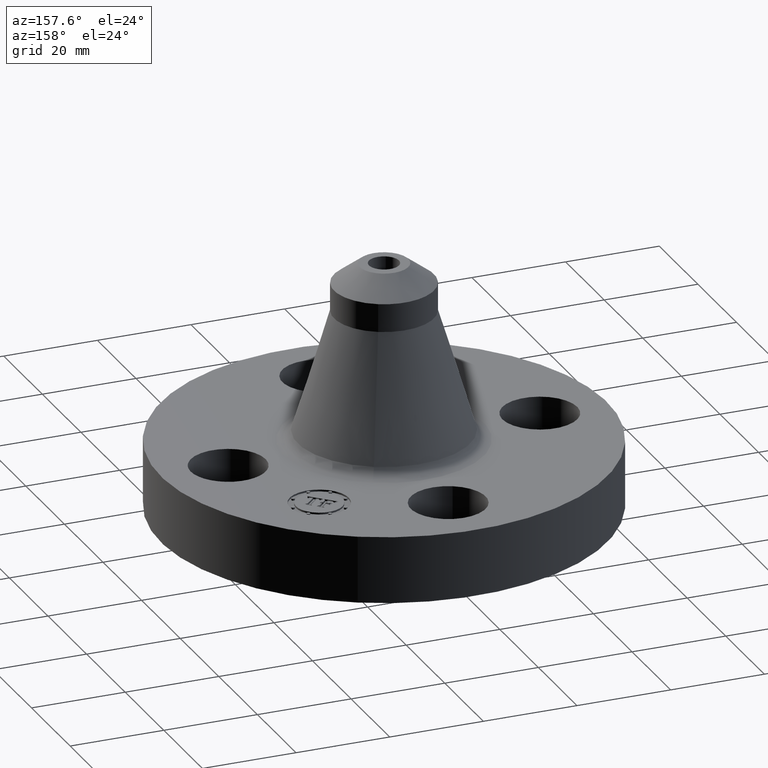
[diagram: clean part render]
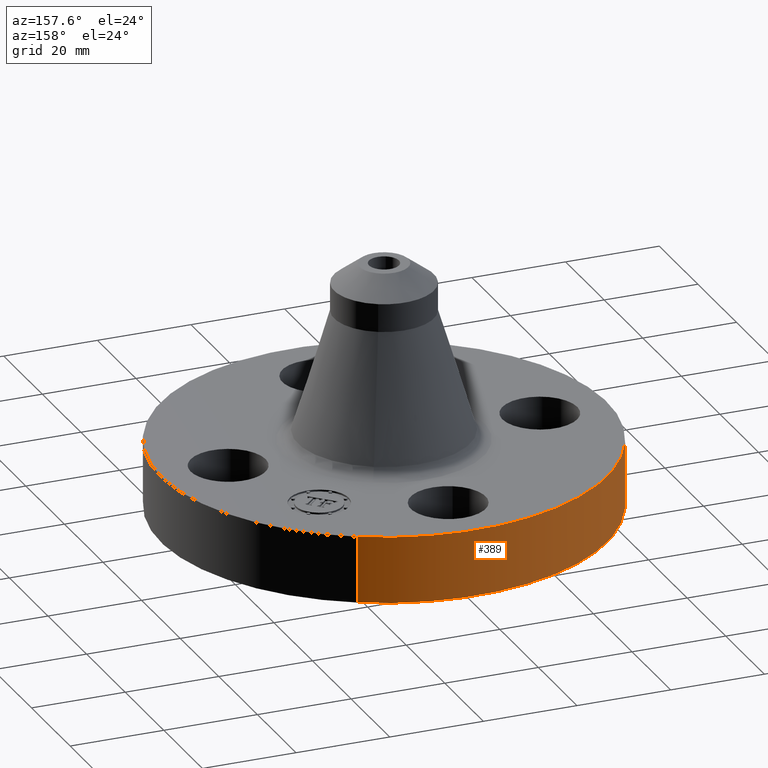
[diagram: same view with one face highlighted and labeled with its STEP entity id]
A machine part, auxiliary view. The second image highlights one B-rep face of the part: STEP entity #389.
In plain terms, the highlighted cylindrical surface (partial cylindrical patch) has radius 47.625 mm, axis along (0, 0, -1).
Its self-contained STEP definition (entity closure, byte-faithful):
#143=AXIS2_PLACEMENT_3D('Circle Axis2P3D',#141,#142,$) ;
#259=AXIS2_PLACEMENT_3D('Circle Axis2P3D',#257,#258,$) ;
#371=AXIS2_PLACEMENT_3D('Cylinder Axis2P3D',#368,#369,#370) ;
#141=CARTESIAN_POINT('Axis2P3D Location',(-3.08540594648E-011,6.07458090828E-013,0.)) ;
#145=CARTESIAN_POINT('Vertex',(-0.898922884866,-1.64546730358,0.)) ;
#147=CARTESIAN_POINT('Vertex',(0.898922884888,1.64546730355,-1.87734342507E-011)) ;
#252=CARTESIAN_POINT('Vertex',(0.898922884866,1.64546730357,0.560000000002)) ;
#254=CARTESIAN_POINT('Vertex',(-0.898922884888,-1.64546730355,0.560000000033)) ;
#257=CARTESIAN_POINT('Axis2P3D Location',(-8.39223703654E-016,9.9999099115E-012,0.560000000002)) ;
#368=CARTESIAN_POINT('Axis2P3D Location',(0.,0.,1.03)) ;
#373=CARTESIAN_POINT('Line Origine',(-0.898922884888,-1.64546730355,0.280000000007)) ;
#378=CARTESIAN_POINT('Line Origine',(0.898922884888,1.64546730355,0.280000000007)) ;
#142=DIRECTION('Axis2P3D Direction',(0.,0.,-0.0393700787402)) ;
#258=DIRECTION('Axis2P3D Direction',(0.,0.,-0.0393700787402)) ;
#369=DIRECTION('Axis2P3D Direction',(0.,0.,-0.0393700787402)) ;
#370=DIRECTION('Axis2P3D XDirection',(-0.0188750212049,-0.0345504945626,0.)) ;
#374=DIRECTION('Vector Direction',(0.,0.,-0.0393700787402)) ;
#379=DIRECTION('Vector Direction',(0.,0.,-0.0393700787402)) ;
#375=VECTOR('Line Direction',#374,0.0393700787402) ;
#380=VECTOR('Line Direction',#379,0.0393700787402) ;
#384=ORIENTED_EDGE('',*,*,#149,.F.) ;
#385=ORIENTED_EDGE('',*,*,#377,.T.) ;
#386=ORIENTED_EDGE('',*,*,#261,.T.) ;
#387=ORIENTED_EDGE('',*,*,#382,.F.) ;
#389=ADVANCED_FACE('PartBody',(#388),#372,.T.) ;
#144=CIRCLE('generated circle',#143,1.87500000001) ;
#260=CIRCLE('generated circle',#259,1.87500000001) ;
#372=CYLINDRICAL_SURFACE('generated cylinder',#371,1.87500000001) ;
#149=EDGE_CURVE('',#146,#148,#144,.T.) ;
#261=EDGE_CURVE('',#255,#253,#260,.T.) ;
#377=EDGE_CURVE('',#146,#255,#376,.F.) ;
#382=EDGE_CURVE('',#148,#253,#381,.F.) ;
#383=EDGE_LOOP('',(#384,#385,#386,#387)) ;
#388=FACE_OUTER_BOUND('',#383,.T.) ;
#376=LINE('Line',#373,#375) ;
#381=LINE('Line',#378,#380) ;
#146=VERTEX_POINT('',#145) ;
#148=VERTEX_POINT('',#147) ;
#253=VERTEX_POINT('',#252) ;
#255=VERTEX_POINT('',#254) ;